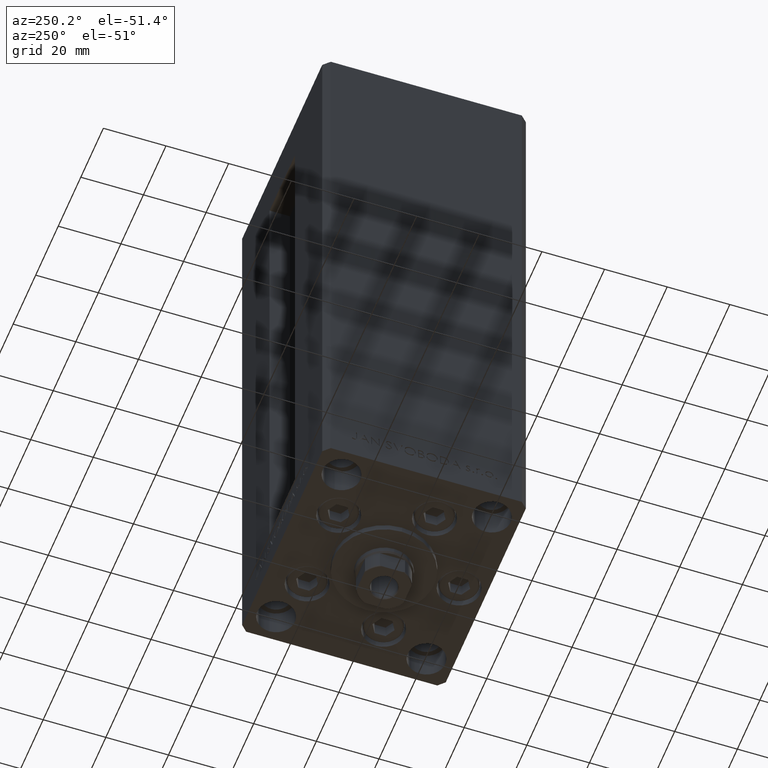
[diagram: clean part render]
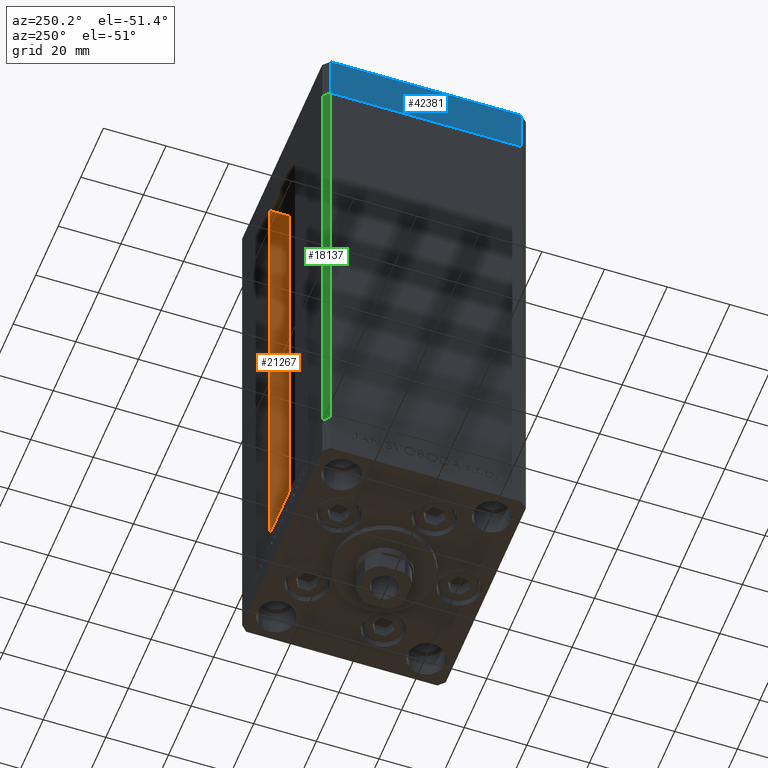
[diagram: same view with three faces highlighted in distinct colors, each labeled with its STEP entity id]
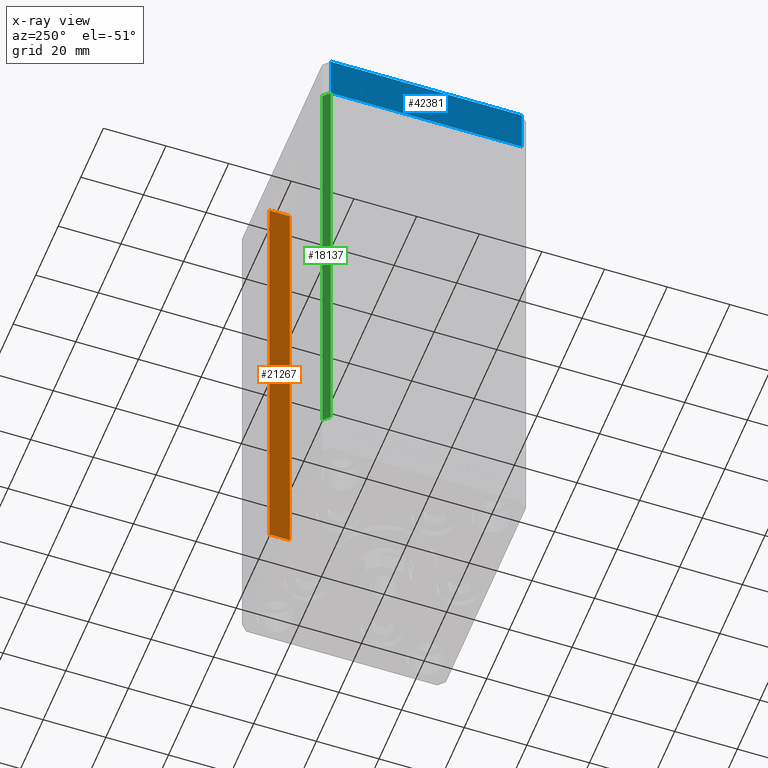
[diagram: x-ray of the same camera — body ghosted, the three highlighted faces saturated]
A machine part, auxiliary view with three faces highlighted in distinct colors.
The next image is the same camera in x-ray (body ghosted, the three faces saturated) — at least one of them is partly hidden behind the body in this view.
Their STEP definitions:

[orange] entity #21267 — the highlighted planar face has unit normal (1, 0, 0).
#1930 = FACE_OUTER_BOUND ( 'NONE', #7683, .T. ) ;
#5215 = CARTESIAN_POINT ( 'NONE',  ( 11.25000000000000178, 32.49999999999999289, 0.000000000000000000 ) ) ;
#5676 = DIRECTION ( 'NONE',  ( 1.000000000000000000, -0.000000000000000000, 0.000000000000000000 ) ) ;
#6645 = CARTESIAN_POINT ( 'NONE',  ( 11.25000000000000178, 32.49999999999999289, 0.000000000000000000 ) ) ;
#7683 = EDGE_LOOP ( 'NONE', ( #38362, #14957, #36731, #15170 ) ) ;
#8727 = VERTEX_POINT ( 'NONE', #5215 ) ;
#9410 = CARTESIAN_POINT ( 'NONE',  ( 11.25000000000000178, 25.99999999999999289, 156.0000000000000000 ) ) ;
#10170 = EDGE_CURVE ( 'NONE', #8727, #31120, #25588, .T. ) ;
#14922 = DIRECTION ( 'NONE',  ( 0.000000000000000000, 1.000000000000000000, 0.000000000000000000 ) ) ;
#14957 = ORIENTED_EDGE ( 'NONE', *, *, #41829, .F. ) ;
#15170 = ORIENTED_EDGE ( 'NONE', *, *, #47300, .F. ) ;
#17798 = LINE ( 'NONE', #43969, #31383 ) ;
#19485 = AXIS2_PLACEMENT_3D ( 'NONE', #47286, #5676, #24614 ) ;
#21267 = ADVANCED_FACE ( 'NONE', ( #1930 ), #28356, .F. ) ;
#21573 = EDGE_CURVE ( 'NONE', #22431, #39472, #17798, .T. ) ;
#22431 = VERTEX_POINT ( 'NONE', #37477 ) ;
#24614 = DIRECTION ( 'NONE',  ( 0.000000000000000000, 0.000000000000000000, -1.000000000000000000 ) ) ;
#25345 = DIRECTION ( 'NONE',  ( -0.000000000000000000, -0.000000000000000000, 1.000000000000000000 ) ) ;
#25588 = LINE ( 'NONE', #6645, #33391 ) ;
#26391 = CARTESIAN_POINT ( 'NONE',  ( 11.25000000000000178, 25.99999999999999289, 0.000000000000000000 ) ) ;
#27397 = DIRECTION ( 'NONE',  ( -0.000000000000000000, -1.000000000000000000, 0.000000000000000000 ) ) ;
#28356 = PLANE ( 'NONE',  #19485 ) ;
#31120 = VERTEX_POINT ( 'NONE', #47979 ) ;
#31383 = VECTOR ( 'NONE', #32979, 1000.000000000000000 ) ;
#31776 = VECTOR ( 'NONE', #27397, 1000.000000000000000 ) ;
#32979 = DIRECTION ( 'NONE',  ( -0.000000000000000000, -0.000000000000000000, 1.000000000000000000 ) ) ;
#33391 = VECTOR ( 'NONE', #25345, 1000.000000000000000 ) ;
#36731 = ORIENTED_EDGE ( 'NONE', *, *, #21573, .T. ) ;
#37477 = CARTESIAN_POINT ( 'NONE',  ( 11.25000000000000178, 25.99999999999999289, 0.000000000000000000 ) ) ;
#38362 = ORIENTED_EDGE ( 'NONE', *, *, #10170, .F. ) ;
#38609 = CARTESIAN_POINT ( 'NONE',  ( 11.25000000000000178, 0.000000000000000000, 156.0000000000000000 ) ) ;
#39472 = VERTEX_POINT ( 'NONE', #9410 ) ;
#40484 = VECTOR ( 'NONE', #14922, 1000.000000000000000 ) ;
#41074 = LINE ( 'NONE', #26391, #40484 ) ;
#41829 = EDGE_CURVE ( 'NONE', #22431, #8727, #41074, .T. ) ;
#43969 = CARTESIAN_POINT ( 'NONE',  ( 11.25000000000000178, 25.99999999999999289, 0.000000000000000000 ) ) ;
#45841 = LINE ( 'NONE', #38609, #31776 ) ;
#47286 = CARTESIAN_POINT ( 'NONE',  ( 11.25000000000000178, 25.99999999999999289, 0.000000000000000000 ) ) ;
#47300 = EDGE_CURVE ( 'NONE', #31120, #39472, #45841, .T. ) ;
#47979 = CARTESIAN_POINT ( 'NONE',  ( 11.24999999999999467, 32.49999999999999289, 156.0000000000000000 ) ) ;

[blue] entity #42381 — the highlighted planar face has unit normal (-1, -0, 0).
#848 = VECTOR ( 'NONE', #24639, 1000.000000000000000 ) ;
#2565 = PLANE ( 'NONE',  #29357 ) ;
#4723 = CARTESIAN_POINT ( 'NONE',  ( -37.49999999999998579, -30.50000000000001421, -15.00000000000000000 ) ) ;
#5448 = LINE ( 'NONE', #4723, #848 ) ;
#8326 = VECTOR ( 'NONE', #30959, 1000.000000000000000 ) ;
#8454 = CARTESIAN_POINT ( 'NONE',  ( -37.49999999999998579, -30.50000000000001421, 0.000000000000000000 ) ) ;
#9100 = VERTEX_POINT ( 'NONE', #49138 ) ;
#11091 = EDGE_CURVE ( 'NONE', #9100, #27888, #5448, .T. ) ;
#14462 = VERTEX_POINT ( 'NONE', #23415 ) ;
#15015 = CARTESIAN_POINT ( 'NONE',  ( -37.50000000000001421, 30.49999999999998579, -15.00000000000000000 ) ) ;
#17060 = ORIENTED_EDGE ( 'NONE', *, *, #18950, .T. ) ;
#17400 = CARTESIAN_POINT ( 'NONE',  ( -37.50000000000001421, 30.49999999999998579, -15.00000000000000000 ) ) ;
#17511 = DIRECTION ( 'NONE',  ( 4.550094363217855288E-16, -1.000000000000000000, 0.000000000000000000 ) ) ;
#17756 = CARTESIAN_POINT ( 'NONE',  ( -37.50000000000001421, 30.49999999999998579, -15.00000000000000000 ) ) ;
#18869 = EDGE_CURVE ( 'NONE', #14462, #27888, #36341, .T. ) ;
#18950 = EDGE_CURVE ( 'NONE', #36828, #9100, #24891, .T. ) ;
#19747 = CARTESIAN_POINT ( 'NONE',  ( -37.50000000000001421, 30.49999999999998579, 0.000000000000000000 ) ) ;
#19894 = ORIENTED_EDGE ( 'NONE', *, *, #28485, .F. ) ;
#20287 = CARTESIAN_POINT ( 'NONE',  ( -37.50000000000001421, 30.49999999999998579, -15.00000000000000000 ) ) ;
#22244 = LINE ( 'NONE', #15015, #8326 ) ;
#23415 = CARTESIAN_POINT ( 'NONE',  ( -37.50000000000001421, 30.49999999999998579, 0.000000000000000000 ) ) ;
#24639 = DIRECTION ( 'NONE',  ( 0.000000000000000000, 0.000000000000000000, 1.000000000000000000 ) ) ;
#24891 = LINE ( 'NONE', #17400, #44813 ) ;
#25464 = EDGE_LOOP ( 'NONE', ( #35930, #19894, #17060, #42082 ) ) ;
#27470 = DIRECTION ( 'NONE',  ( 4.550094363217855288E-16, -1.000000000000000000, 0.000000000000000000 ) ) ;
#27888 = VERTEX_POINT ( 'NONE', #8454 ) ;
#28485 = EDGE_CURVE ( 'NONE', #36828, #14462, #22244, .T. ) ;
#29210 = DIRECTION ( 'NONE',  ( -1.000000000000000000, -4.550094363217855288E-16, 0.000000000000000000 ) ) ;
#29357 = AXIS2_PLACEMENT_3D ( 'NONE', #17756, #29210, #17511 ) ;
#30959 = DIRECTION ( 'NONE',  ( 0.000000000000000000, 0.000000000000000000, 1.000000000000000000 ) ) ;
#32349 = DIRECTION ( 'NONE',  ( 4.550094363217855288E-16, -1.000000000000000000, 0.000000000000000000 ) ) ;
#35930 = ORIENTED_EDGE ( 'NONE', *, *, #18869, .F. ) ;
#36341 = LINE ( 'NONE', #19747, #43260 ) ;
#36445 = FACE_OUTER_BOUND ( 'NONE', #25464, .T. ) ;
#36828 = VERTEX_POINT ( 'NONE', #20287 ) ;
#42082 = ORIENTED_EDGE ( 'NONE', *, *, #11091, .T. ) ;
#42381 = ADVANCED_FACE ( 'NONE', ( #36445 ), #2565, .T. ) ;
#43260 = VECTOR ( 'NONE', #32349, 1000.000000000000000 ) ;
#44813 = VECTOR ( 'NONE', #27470, 1000.000000000000000 ) ;
#49138 = CARTESIAN_POINT ( 'NONE',  ( -37.49999999999998579, -30.50000000000001421, -15.00000000000000000 ) ) ;

[green] entity #18137 — the highlighted planar face has unit normal (0.7071, -0.7071, 0).
#270 = DIRECTION ( 'NONE',  ( -0.000000000000000000, -0.000000000000000000, -1.000000000000000000 ) ) ;
#1470 = DIRECTION ( 'NONE',  ( 0.7071067811865500152, 0.7071067811865451302, 0.000000000000000000 ) ) ;
#2527 = CARTESIAN_POINT ( 'NONE',  ( -37.50000000000000711, 30.50000000000000000, 0.000000000000000000 ) ) ;
#4960 = DIRECTION ( 'NONE',  ( -0.000000000000000000, -0.000000000000000000, -1.000000000000000000 ) ) ;
#5214 = CARTESIAN_POINT ( 'NONE',  ( -35.50000000000000000, 32.49999999999999289, 156.0000000000000000 ) ) ;
#5427 = CARTESIAN_POINT ( 'NONE',  ( -37.50000000000000711, 30.50000000000000000, 156.0000000000000000 ) ) ;
#6557 = ORIENTED_EDGE ( 'NONE', *, *, #25666, .T. ) ;
#7210 = CARTESIAN_POINT ( 'NONE',  ( -35.50000000000000000, 32.49999999999999289, 156.0000000000000000 ) ) ;
#8560 = DIRECTION ( 'NONE',  ( -0.7071067811865500152, -0.7071067811865451302, 0.000000000000000000 ) ) ;
#8565 = EDGE_CURVE ( 'NONE', #10795, #22006, #44351, .T. ) ;
#8942 = LINE ( 'NONE', #24139, #43769 ) ;
#8951 = FACE_OUTER_BOUND ( 'NONE', #40156, .T. ) ;
#10092 = EDGE_CURVE ( 'NONE', #22006, #32973, #8942, .T. ) ;
#10559 = AXIS2_PLACEMENT_3D ( 'NONE', #5214, #23910, #1470 ) ;
#10694 = DIRECTION ( 'NONE',  ( -0.7071067811865500152, -0.7071067811865451302, 0.000000000000000000 ) ) ;
#10795 = VERTEX_POINT ( 'NONE', #14443 ) ;
#14443 = CARTESIAN_POINT ( 'NONE',  ( -35.50000000000000000, 32.49999999999999289, 156.0000000000000000 ) ) ;
#16276 = CARTESIAN_POINT ( 'NONE',  ( -35.50000000000000000, 32.49999999999999289, 0.000000000000000000 ) ) ;
#16562 = ORIENTED_EDGE ( 'NONE', *, *, #10092, .F. ) ;
#18137 = ADVANCED_FACE ( 'NONE', ( #8951 ), #31365, .F. ) ;
#20272 = CARTESIAN_POINT ( 'NONE',  ( -35.50000000000000000, 32.49999999999999289, 0.000000000000000000 ) ) ;
#22006 = VERTEX_POINT ( 'NONE', #5427 ) ;
#22633 = EDGE_CURVE ( 'NONE', #25498, #32973, #27514, .T. ) ;
#22816 = ORIENTED_EDGE ( 'NONE', *, *, #22633, .T. ) ;
#22954 = LINE ( 'NONE', #26690, #35487 ) ;
#23500 = VECTOR ( 'NONE', #8560, 1000.000000000000114 ) ;
#23910 = DIRECTION ( 'NONE',  ( 0.7071067811865451302, -0.7071067811865500152, 0.000000000000000000 ) ) ;
#24139 = CARTESIAN_POINT ( 'NONE',  ( -37.50000000000000711, 30.50000000000000000, 156.0000000000000000 ) ) ;
#25498 = VERTEX_POINT ( 'NONE', #16276 ) ;
#25666 = EDGE_CURVE ( 'NONE', #10795, #25498, #22954, .T. ) ;
#26690 = CARTESIAN_POINT ( 'NONE',  ( -35.50000000000000000, 32.49999999999999289, 156.0000000000000000 ) ) ;
#27514 = LINE ( 'NONE', #20272, #23500 ) ;
#31365 = PLANE ( 'NONE',  #10559 ) ;
#32973 = VERTEX_POINT ( 'NONE', #2527 ) ;
#35487 = VECTOR ( 'NONE', #270, 1000.000000000000000 ) ;
#40156 = EDGE_LOOP ( 'NONE', ( #22816, #16562, #41976, #6557 ) ) ;
#41976 = ORIENTED_EDGE ( 'NONE', *, *, #8565, .F. ) ;
#43769 = VECTOR ( 'NONE', #4960, 1000.000000000000000 ) ;
#44351 = LINE ( 'NONE', #7210, #47824 ) ;
#47824 = VECTOR ( 'NONE', #10694, 1000.000000000000114 ) ;